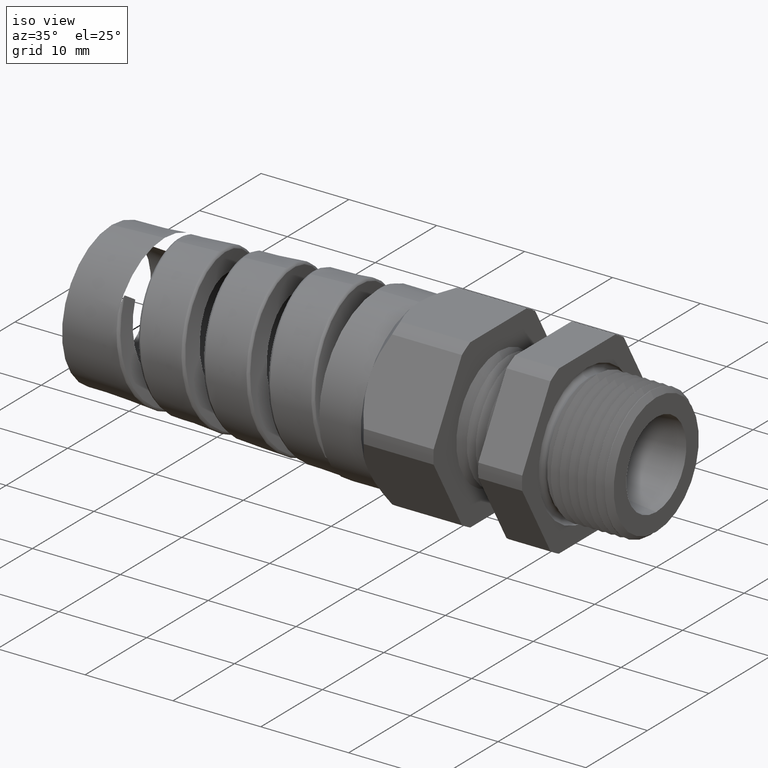
[diagram: clean part render]
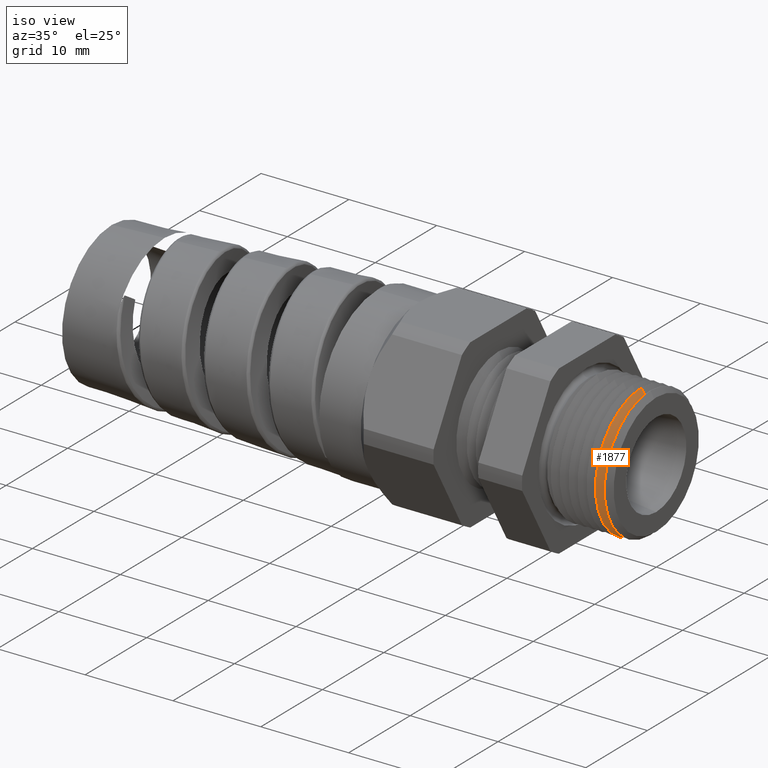
[diagram: same view with one face highlighted and labeled with its STEP entity id]
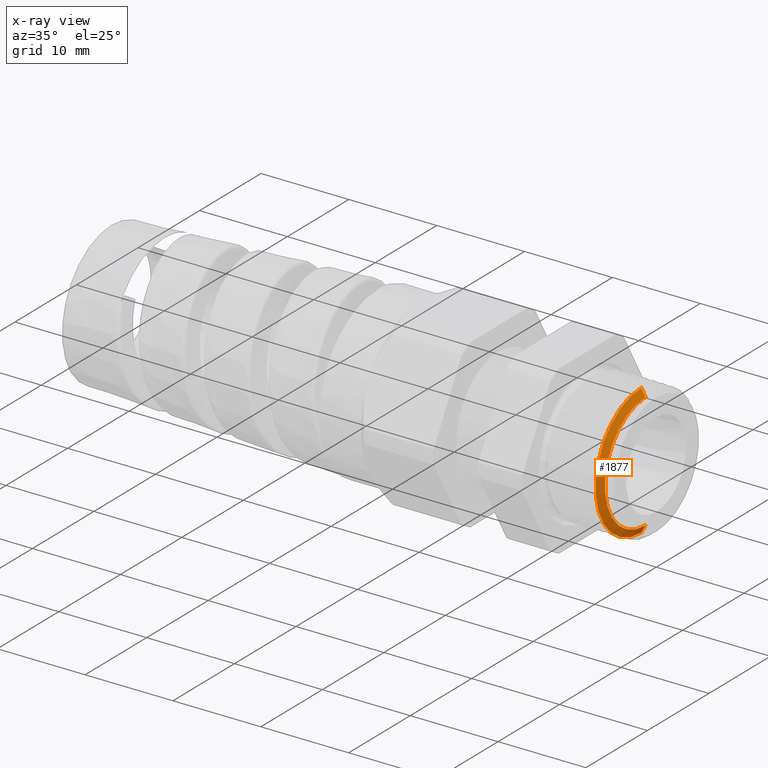
[diagram: x-ray of the same camera — body ghosted, the highlighted face saturated]
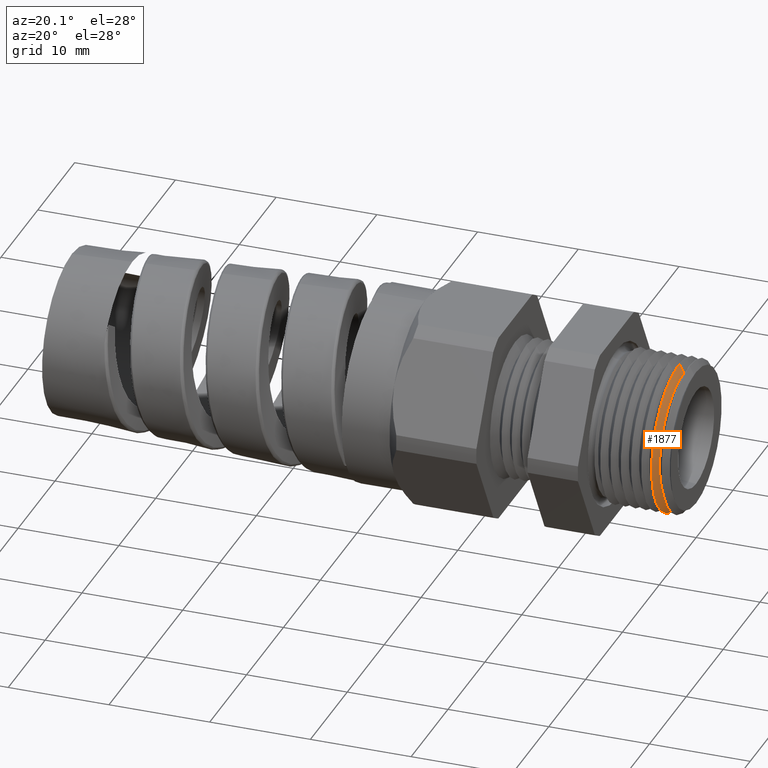
[diagram: same view with one face highlighted and labeled with its STEP entity id]
A machine part, iso view. The second image highlights one B-rep face of the part: STEP entity #1877.
The next image is the same camera in x-ray: the body ghosted, the highlighted face saturated — about 0% of this face is hidden behind the body in this view.
A second angle (auxiliary view) of the same face is appended — the face is thin or edge-on in the first view.
In plain terms, the highlighted conical surface has half-angle 61.5 deg.
Its self-contained STEP definition (entity closure, byte-faithful):
#260 = EDGE_CURVE ( 'NONE', #1586, #7772, #4781, .T. ) ;
#1586 = VERTEX_POINT ( 'NONE', #7450 ) ;
#1591 = EDGE_CURVE ( 'NONE', #7845, #1586, #7449, .T. ) ;
#1684 = ORIENTED_EDGE ( 'NONE', *, *, #1686, .F. ) ;
#1685 = EDGE_LOOP ( 'NONE', ( #1687, #1684, #1980, #2009 ) ) ;
#1686 = EDGE_CURVE ( 'NONE', #7845, #7775, #7565, .T. ) ;
#1687 = ORIENTED_EDGE ( 'NONE', *, *, #7778, .F. ) ;
#1877 = ADVANCED_FACE ( 'NONE', ( #3413 ), #3412, .T. ) ;
#1980 = ORIENTED_EDGE ( 'NONE', *, *, #1591, .T. ) ;
#2009 = ORIENTED_EDGE ( 'NONE', *, *, #260, .T. ) ;
#3408 = DIRECTION ( 'NONE',  ( 0.0000000000000000000, 0.0000000000000000000, 1.000000000000000000 ) ) ;
#3409 = DIRECTION ( 'NONE',  ( -1.000000000000000000, 0.0000000000000000000, 0.0000000000000000000 ) ) ;
#3410 = AXIS2_PLACEMENT_3D ( 'NONE', #3418, #3409, #3408 ) ;
#3412 = CONICAL_SURFACE ( 'NONE', #3410, 0.2999999999999999900, 1.073377489976514300 ) ;
#3413 = FACE_OUTER_BOUND ( 'NONE', #1685, .T. ) ;
#3418 = CARTESIAN_POINT ( 'NONE',  ( -0.06999999999999984000, 0.0000000000000000000, 0.0000000000000000000 ) ) ;
#4277 = DIRECTION ( 'NONE',  ( -0.4771587602596069600, 1.076240564057395700E-016, -0.8788171126619660500 ) ) ;
#4278 = VECTOR ( 'NONE', #4277, 39.37007874015748900 ) ;
#4279 = CARTESIAN_POINT ( 'NONE',  ( -0.06999999999999984000, 3.673940397442058900E-017, -0.2999999999999999900 ) ) ;
#4280 = LINE ( 'NONE', #4279, #4278 ) ;
#4281 = CARTESIAN_POINT ( 'NONE',  ( -0.04796098090543417200, 3.386356056315664800E-017, -0.2594091762748933500 ) ) ;
#4283 = CARTESIAN_POINT ( 'NONE',  ( -0.06653851441843280900, 3.595937765065676400E-017, -0.2936247366334452400 ) ) ;
#4319 = CARTESIAN_POINT ( 'NONE',  ( -0.04796098090543417200, 0.0000000000000000000, 0.2594091762748933500 ) ) ;
#4773 = DIRECTION ( 'NONE',  ( 0.0000000000000000000, 0.0000000000000000000, 1.000000000000000000 ) ) ;
#4774 = DIRECTION ( 'NONE',  ( 1.000000000000000000, 0.0000000000000000000, 0.0000000000000000000 ) ) ;
#4775 = CARTESIAN_POINT ( 'NONE',  ( -0.06653851441843280900, 0.0000000000000000000, 0.0000000000000000000 ) ) ;
#4776 = AXIS2_PLACEMENT_3D ( 'NONE', #4775, #4774, #4773 ) ;
#4781 = CIRCLE ( 'NONE', #4776, 0.2936247366334452400 ) ;
#7446 = DIRECTION ( 'NONE',  ( -0.4771587602596069600, 0.0000000000000000000, 0.8788171126619660500 ) ) ;
#7447 = VECTOR ( 'NONE', #7446, 39.37007874015748900 ) ;
#7448 = CARTESIAN_POINT ( 'NONE',  ( -0.06999999999999984000, 0.0000000000000000000, 0.2999999999999999900 ) ) ;
#7449 = LINE ( 'NONE', #7448, #7447 ) ;
#7450 = CARTESIAN_POINT ( 'NONE',  ( -0.06653851441843280900, 0.0000000000000000000, 0.2936247366334452400 ) ) ;
#7557 = DIRECTION ( 'NONE',  ( 0.0000000000000000000, 0.0000000000000000000, -1.000000000000000000 ) ) ;
#7558 = DIRECTION ( 'NONE',  ( 1.000000000000000000, 0.0000000000000000000, 0.0000000000000000000 ) ) ;
#7559 = CARTESIAN_POINT ( 'NONE',  ( -0.04796098090543417200, 0.0000000000000000000, 0.0000000000000000000 ) ) ;
#7560 = AXIS2_PLACEMENT_3D ( 'NONE', #7559, #7558, #7557 ) ;
#7565 = CIRCLE ( 'NONE', #7560, 0.2594091762748933500 ) ;
#7772 = VERTEX_POINT ( 'NONE', #4283 ) ;
#7775 = VERTEX_POINT ( 'NONE', #4281 ) ;
#7778 = EDGE_CURVE ( 'NONE', #7775, #7772, #4280, .T. ) ;
#7845 = VERTEX_POINT ( 'NONE', #4319 ) ;